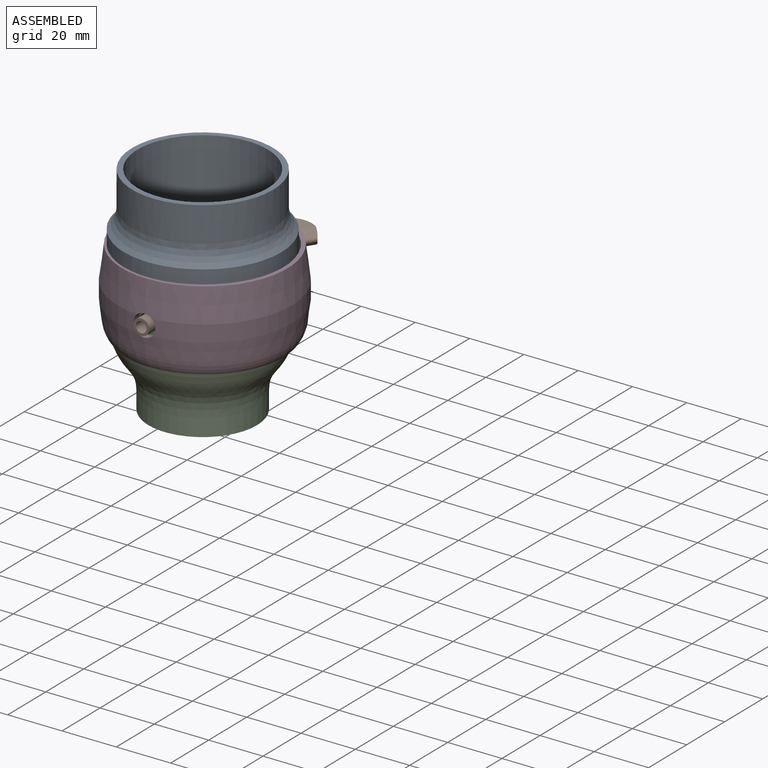
[diagram: assembled view]
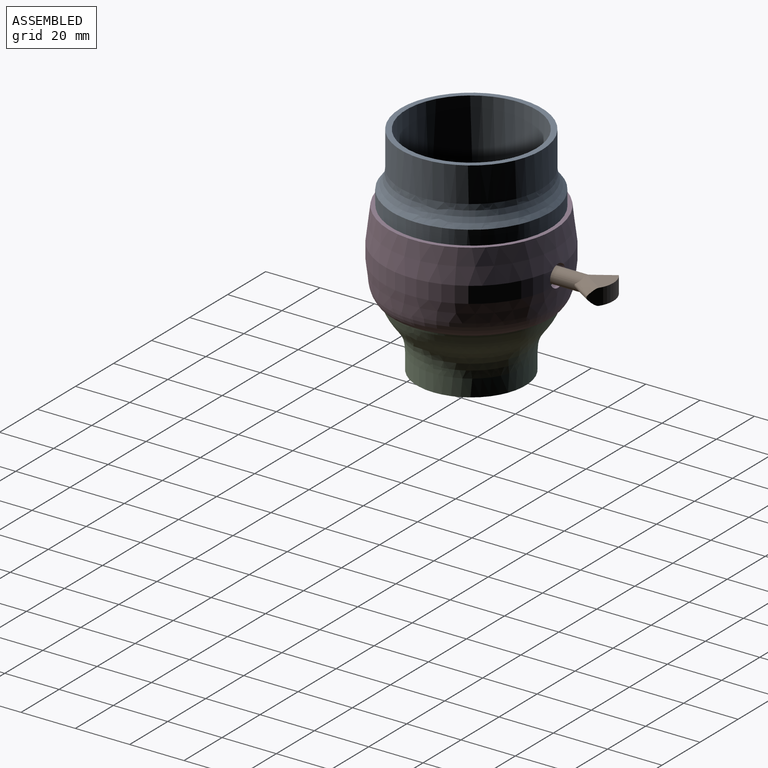
[diagram: assembled view, second angle]
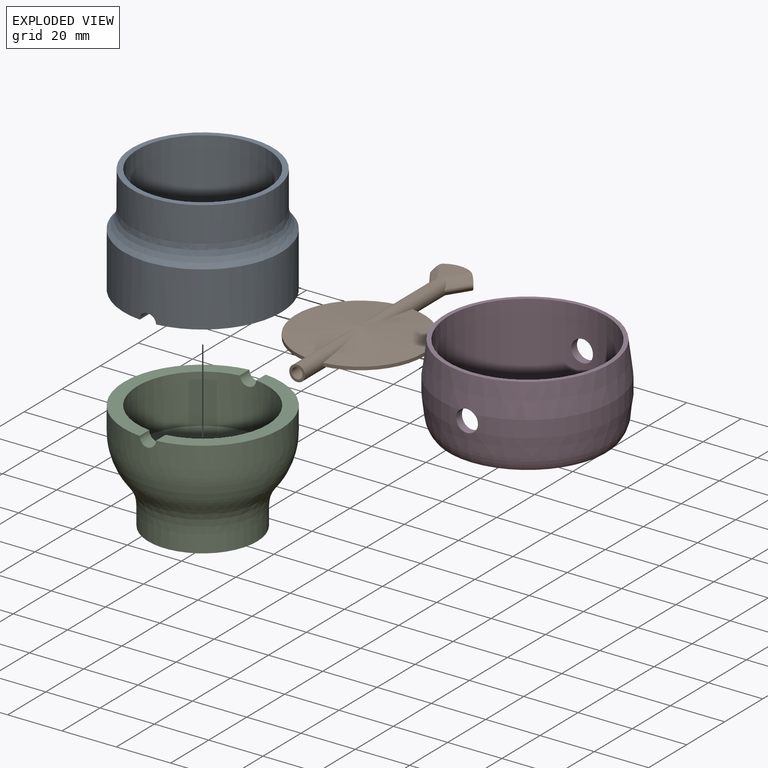
[diagram: exploded view]
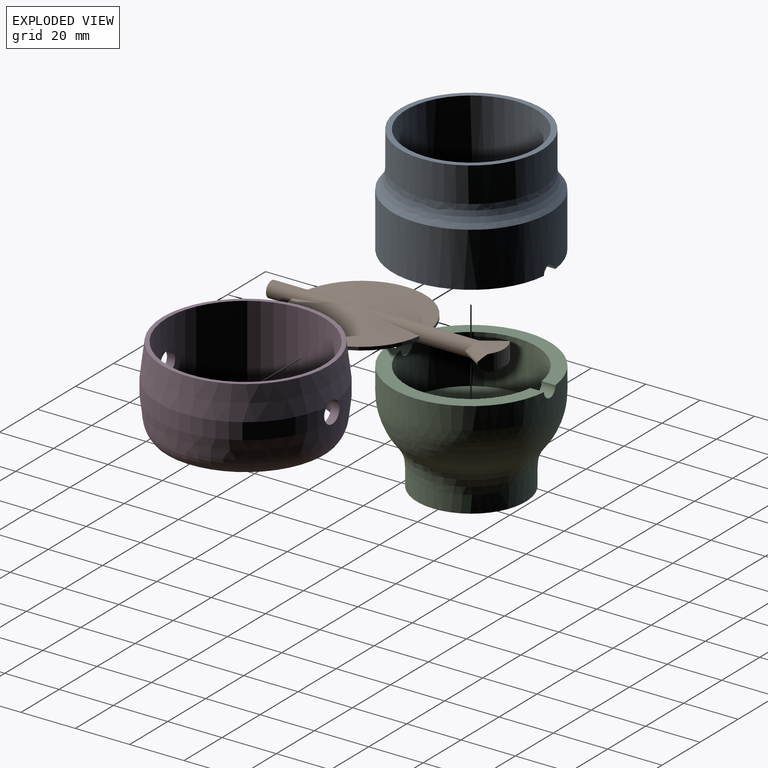
[diagram: exploded view, second angle]
ASSEMBLY  parts=4 mates=2
PART A: 9 faces, bbox 58x58x40 mm
  f0: plane 57.69x26mm, normal (0,0,1), area 386.2mm2, adj f1,f4,f7,f8
  f1: cylinder r=24mm len=48mm, axis (0,0,-1), area 6003.6mm2, adj f0,f3,f5,f7,f8
  f2: cylinder r=26mm len=52mm, axis (0,0,-1), area 2100.6mm2, adj f3,f6
  f3: plane 52x52mm, normal (0,0,-1), area 314.2mm2, adj f1,f2
  f4: cylinder r=29mm len=58mm, axis (0,0,-1), area 3616mm2, adj f0,f5,f6,f7,f8
  f5: plane 57.69x26mm, normal (0,0,1), area 386.2mm2, adj f1,f4,f7,f8
  f6: bspline ~57.97x57.94mm, area 1352.1mm2, adj f2,f4
  f7: cylinder r=3mm len=6mm, axis (0,-1,0), area 47.4mm2, adj f0,f1,f4,f5
  f8: cylinder r=3mm len=6mm, axis (0,-1,0), area 47.4mm2, adj f0,f1,f4,f5
PART B: 22 faces, bbox 47.3x6x85.7 mm
  f0: cylinder r=2.9mm len=40.99mm, axis (0,0,-1), area 558.8mm2, adj f2,f3,f7,f9,f11,f12,f13,f14
  f1: cylinder r=2.9mm len=31.45mm, axis (0,0,-1), area 399.9mm2, adj f2,f3,f7,f9,f19
  f2: cylinder r=23.62mm len=46.91mm, axis (0,1,0), area 82.2mm2, adj f0,f1,f7,f9
  f3: cylinder r=23.62mm len=46.91mm, axis (0,1,0), area 82.2mm2, adj f0,f1,f7,f9
  f4: plane 1.25x1.25mm, normal (0,-1,0), area 1.2mm2, adj f7
  f5: cylinder r=9.5mm len=15.97mm, axis (0,1,0), area 93.9mm2, adj f6,f10,f11,f12,f13,f14,f16,f17
  f6: plane 10.48x9.74mm, normal (0,-1,0), area 54mm2, adj f5,f11,f12
  f7: cone r=0.62mm half-angle=84deg, axis (0,1,0), area 1572.1mm2, adj f0,f1,f2,f3,f4
  f8: plane 1.25x1.25mm, normal (0,1,0), area 1.2mm2, adj f9
  f9: cone r=0.62mm half-angle=84deg, axis (0,-1,0), area 1573.4mm2, adj f0,f1,f2,f3,f8
  f10: plane 10.48x9.74mm, normal (0,1,0), area 54mm2, adj f5,f13,f14
  f11: bspline ~10.52x8.51mm, area 40.2mm2, adj f0,f5,f6,f15,f16
  f12: bspline ~10.52x8.51mm, area 40.2mm2, adj f0,f5,f6,f15,f17
  f13: bspline ~10.52x8.51mm, area 40.2mm2, adj f0,f5,f10,f16,f18
  f14: bspline ~10.52x8.51mm, area 40.2mm2, adj f0,f5,f10,f17,f18
  f15: bspline ~0.94x0.64mm, area 0.2mm2, adj f0,f11,f12
  f16: bspline ~11.98x7.98mm, area 13.5mm2, adj f0,f5,f11,f13
  f17: bspline ~11.98x7.98mm, area 13.6mm2, adj f0,f5,f12,f14
  f18: bspline ~0.94x0.64mm, area 0.2mm2, adj f0,f13,f14
  f19: plane 5.8x5.8mm, normal (0,0,-1), area 13.9mm2, adj f1,f20
  f20: cylinder r=2mm len=20mm, axis (0,0,-1), area 251.3mm2, adj f19,f21
  f21: plane 4x4mm, normal (0,0,-1), area 12.6mm2, adj f20
PART C: 13 faces, bbox 58x58x40 mm
  f0: cylinder r=17.5mm len=35mm, axis (0,0,-1), area 1869.2mm2, adj f3,f11
  f1: plane 57.69x26mm, normal (0,0,1), area 386.2mm2, adj f4,f7,f8,f9
  f2: cylinder r=20mm len=40mm, axis (0,0,-1), area 785.7mm2, adj f3,f6
  f3: plane 40x40mm, normal (0,0,-1), area 294.5mm2, adj f0,f2
  f4: cylinder r=29mm len=58mm, axis (0,0,-1), area 1451.1mm2, adj f1,f5,f7,f8,f12
  f5: plane 57.69x26mm, normal (0,0,1), area 386.2mm2, adj f4,f7,f8,f9
  f6: bspline ~58x58mm, area 1355.7mm2, adj f2,f12
  f7: cylinder r=3mm len=6mm, axis (0,-1,0), area 47.4mm2, adj f1,f4,f5,f9
  f8: cylinder r=3mm len=6mm, axis (0,-1,0), area 47.4mm2, adj f1,f4,f5,f9
  f9: cylinder r=24mm len=48mm, axis (0,0,1), area 2686mm2, adj f1,f5,f7,f8,f10
  f10: plane 48x48mm, normal (0,0,1), area 219.1mm2, adj f9,f11
  f11: torus R=22.5mm, axis (0,0,1), area 953.3mm2, adj f0,f10
  f12: bspline ~58.01x58mm, area 2963.7mm2, adj f4,f6
PART D: 9 faces, bbox 67.6x67.6x30.8 mm
  f0: cylinder r=32mm len=63.78mm, axis (0,0,-1), area 560.1mm2, adj f4,f5,f6,f7
  f1: cylinder r=29mm len=58mm, axis (0,0,-1), area 5365.4mm2, adj f3,f4,f5,f8
  f2: cylinder r=32mm len=63.78mm, axis (0,0,-1), area 560.1mm2, adj f4,f5,f6,f7
  f3: plane 61x61mm, normal (0,0,-1), area 280.4mm2, adj f1,f6
  f4: cylinder r=4mm len=8mm, axis (-1,0,0), area 74.8mm2, adj f0,f1,f2,f6,f7
  f5: cylinder r=4mm len=8mm, axis (-1,0,0), area 74.9mm2, adj f0,f1,f2,f6,f7
  f6: cone r=32mm half-angle=7.1deg, axis (0,0,1), area 2367.2mm2, adj f0,f2,f3,f4,f5
  f7: cone r=30.5mm half-angle=7.1deg, axis (0,0,-1), area 1387mm2, adj f0,f2,f4,f5,f8
  f8: torus R=21.21mm, axis (0,0,1), area 1051.9mm2, adj f1,f7
PLACE A rot(axis=(1,0,0),180deg) t=(53.11,0.96,101.59)mm
PLACE B rot(axis=(-1,0,0),90deg) t=(53.62,-28.07,61.6)mm
PLACE C t=(53.11,0.96,21.59)mm
PLACE D rot(axis=(0.71,-0.71,0),180deg) t=(53.62,1.37,76.61)mm
MATE cylindrical C.f4 <-> A.f1  axis (0,0,1) through (53.11,0.96,61.59)mm
MATE slider D.f4 <-> B.f0  axis (0,1,0) through (53.62,-30.54,61.6)mm
